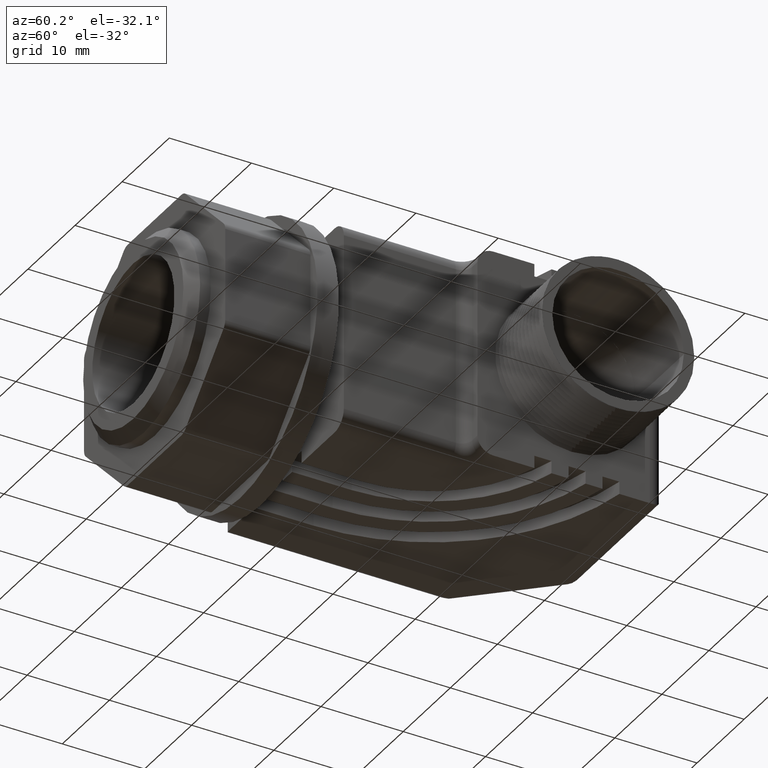
[diagram: clean part render]
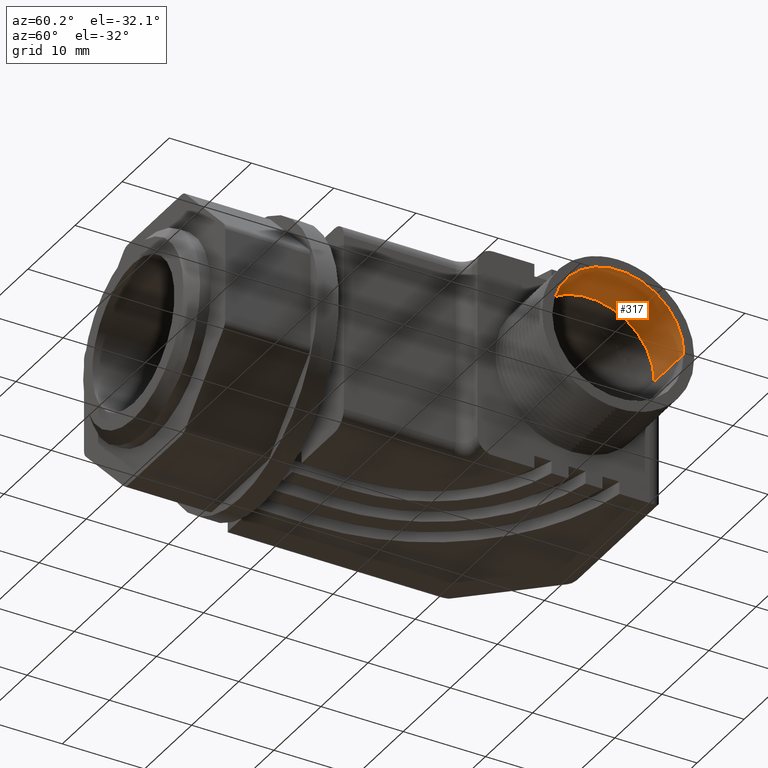
[diagram: same view with one face highlighted and labeled with its STEP entity id]
A machine part, auxiliary view. The second image highlights one B-rep face of the part: STEP entity #317.
In plain terms, the highlighted cylindrical surface (partial cylindrical patch) has radius 8.001 mm, axis along (1, 0, 0).
Its self-contained STEP definition (entity closure, byte-faithful):
#317 = ADVANCED_FACE ( 'NONE', ( #1027 ), #1022, .F. ) ;
#318 = EDGE_LOOP ( 'NONE', ( #319, #320, #1806, #1820 ) ) ;
#319 = ORIENTED_EDGE ( 'NONE', *, *, #3921, .F. ) ;
#320 = ORIENTED_EDGE ( 'NONE', *, *, #1297, .T. ) ;
#331 = EDGE_CURVE ( 'NONE', #3923, #4214, #1060, .T. ) ;
#1018 = DIRECTION ( 'NONE',  ( 0.0000000000000000000, 1.000000000000000000, 0.0000000000000000000 ) ) ;
#1019 = DIRECTION ( 'NONE',  ( 1.000000000000000000, 1.944457610068500500E-016, 0.0000000000000000000 ) ) ;
#1020 = CARTESIAN_POINT ( 'NONE',  ( 0.7499999999999997800, 1.750000000000000200, 0.0000000000000000000 ) ) ;
#1021 = AXIS2_PLACEMENT_3D ( 'NONE', #1020, #1019, #1018 ) ;
#1022 = CYLINDRICAL_SURFACE ( 'NONE', #1021, 0.3150000000000000600 ) ;
#1027 = FACE_OUTER_BOUND ( 'NONE', #318, .T. ) ;
#1056 = DIRECTION ( 'NONE',  ( 0.0000000000000000000, 1.000000000000000000, 0.0000000000000000000 ) ) ;
#1057 = DIRECTION ( 'NONE',  ( -1.000000000000000000, -9.756599977372369900E-017, -0.0000000000000000000 ) ) ;
#1058 = CARTESIAN_POINT ( 'NONE',  ( 0.9969822449999998800, 1.750000000000000200, 0.0000000000000000000 ) ) ;
#1059 = AXIS2_PLACEMENT_3D ( 'NONE', #1058, #1057, #1056 ) ;
#1060 = CIRCLE ( 'NONE', #1059, 0.3150000000000000600 ) ;
#1295 = VERTEX_POINT ( 'NONE', #4145 ) ;
#1297 = EDGE_CURVE ( 'NONE', #1298, #1295, #4144, .T. ) ;
#1298 = VERTEX_POINT ( 'NONE', #4139 ) ;
#1806 = ORIENTED_EDGE ( 'NONE', *, *, #3926, .T. ) ;
#1820 = ORIENTED_EDGE ( 'NONE', *, *, #331, .F. ) ;
#3921 = EDGE_CURVE ( 'NONE', #1298, #3923, #6435, .T. ) ;
#3923 = VERTEX_POINT ( 'NONE', #6431 ) ;
#3926 = EDGE_CURVE ( 'NONE', #1295, #4214, #6429, .T. ) ;
#4139 = CARTESIAN_POINT ( 'NONE',  ( 0.7499999999999998900, 1.435000000000000100, 3.857510014540487300E-017 ) ) ;
#4140 = DIRECTION ( 'NONE',  ( 0.0000000000000000000, 0.0000000000000000000, -1.000000000000000000 ) ) ;
#4141 = DIRECTION ( 'NONE',  ( -1.000000000000000000, -2.832749226161501700E-016, 0.0000000000000000000 ) ) ;
#4142 = CARTESIAN_POINT ( 'NONE',  ( 0.7499999999999997800, 1.750000000000000200, 0.0000000000000000000 ) ) ;
#4143 = AXIS2_PLACEMENT_3D ( 'NONE', #4142, #4141, #4140 ) ;
#4144 = CIRCLE ( 'NONE', #4143, 0.3150000000000000000 ) ;
#4145 = CARTESIAN_POINT ( 'NONE',  ( 0.7499999999999996700, 2.065000000000000400, 0.0000000000000000000 ) ) ;
#4214 = VERTEX_POINT ( 'NONE', #6498 ) ;
#6426 = DIRECTION ( 'NONE',  ( 1.000000000000000000, 1.944457610068500500E-016, 0.0000000000000000000 ) ) ;
#6427 = VECTOR ( 'NONE', #6426, 39.37007874015748100 ) ;
#6428 = CARTESIAN_POINT ( 'NONE',  ( 0.7499999999999997800, 2.065000000000000400, 0.0000000000000000000 ) ) ;
#6429 = LINE ( 'NONE', #6428, #6427 ) ;
#6431 = CARTESIAN_POINT ( 'NONE',  ( 0.9969822449999998800, 1.435000000000000100, 3.857510014540487300E-017 ) ) ;
#6432 = DIRECTION ( 'NONE',  ( 1.000000000000000000, 1.944457610068500500E-016, 0.0000000000000000000 ) ) ;
#6433 = VECTOR ( 'NONE', #6432, 39.37007874015748100 ) ;
#6434 = CARTESIAN_POINT ( 'NONE',  ( 0.7499999999999997800, 1.435000000000000100, 3.857510014540487900E-017 ) ) ;
#6435 = LINE ( 'NONE', #6434, #6433 ) ;
#6498 = CARTESIAN_POINT ( 'NONE',  ( 0.9969822449999998800, 2.065000000000000400, 0.0000000000000000000 ) ) ;